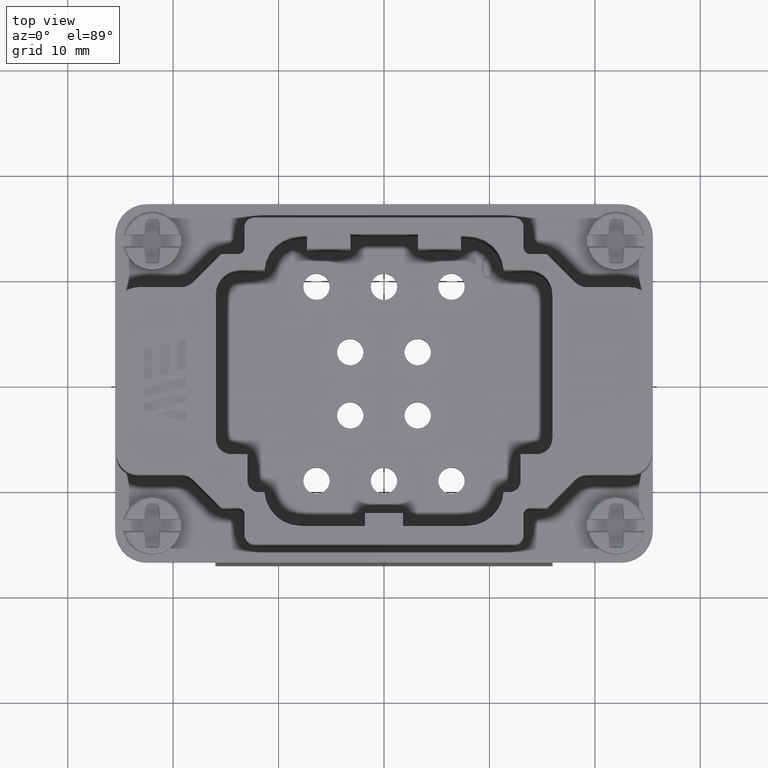
[diagram: clean part render]
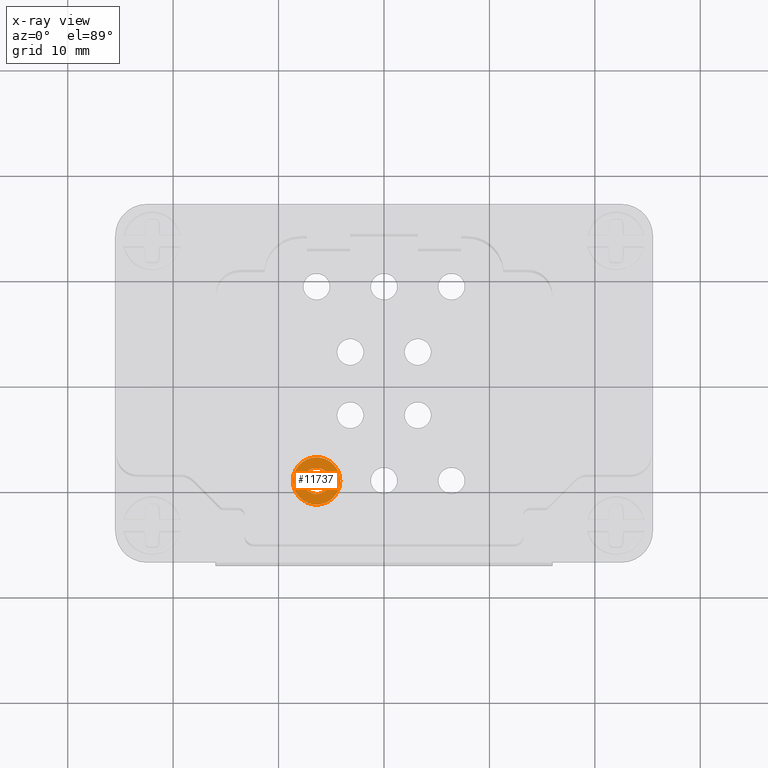
[diagram: x-ray — body ghosted, one internal face saturated and labeled with its STEP entity id]
A machine part, top view, then the same camera in x-ray: the body is ghosted and one INTERNAL B-rep face — a face not visible from any outside direction — is saturated and labeled: STEP entity #11737.
In plain terms, the highlighted planar face has unit normal (0, 0, 1).
Its self-contained STEP definition (entity closure, byte-faithful):
#1718 = CARTESIAN_POINT ( 'NONE',  ( -0.2519685326492323019, -0.3622047245847696550, -0.6496062992126024893 ) ) ;
#2510 = ORIENTED_EDGE ( 'NONE', *, *, #4853, .T. ) ;
#2713 = CARTESIAN_POINT ( 'NONE',  ( -0.1633858554838779620, -0.3622047245847696550, -0.6496062992126024893 ) ) ;
#2840 = AXIS2_PLACEMENT_3D ( 'NONE', #1718, #7911, #4754 ) ;
#3561 = DIRECTION ( 'NONE',  ( 0.000000000000000000, 0.000000000000000000, -1.000000000000000000 ) ) ;
#3744 = EDGE_CURVE ( 'NONE', #17193, #5193, #16396, .T. ) ;
#3760 = EDGE_LOOP ( 'NONE', ( #2510, #19165 ) ) ;
#3880 = CIRCLE ( 'NONE', #6245, 0.08858267716535433989 ) ;
#4560 = CARTESIAN_POINT ( 'NONE',  ( -0.2519685326492323019, -0.3622047245847696550, -0.6496062992126024893 ) ) ;
#4754 = DIRECTION ( 'NONE',  ( 1.000000000000000000, 0.000000000000000000, -0.000000000000000000 ) ) ;
#4853 = EDGE_CURVE ( 'NONE', #19788, #15242, #10750, .T. ) ;
#5193 = VERTEX_POINT ( 'NONE', #9506 ) ;
#5656 = DIRECTION ( 'NONE',  ( -1.000000000000000000, 0.000000000000000000, 0.000000000000000000 ) ) ;
#5684 = FACE_OUTER_BOUND ( 'NONE', #3760, .T. ) ;
#6245 = AXIS2_PLACEMENT_3D ( 'NONE', #13362, #19526, #11384 ) ;
#7195 = AXIS2_PLACEMENT_3D ( 'NONE', #16305, #3561, #8177 ) ;
#7439 = DIRECTION ( 'NONE',  ( 0.000000000000000000, 0.000000000000000000, -1.000000000000000000 ) ) ;
#7911 = DIRECTION ( 'NONE',  ( 0.000000000000000000, 0.000000000000000000, 1.000000000000000000 ) ) ;
#8177 = DIRECTION ( 'NONE',  ( -1.000000000000000000, 0.000000000000000000, 0.000000000000000000 ) ) ;
#9506 = CARTESIAN_POINT ( 'NONE',  ( -0.2027559342240354556, -0.3622047245847696550, -0.6496062992126024893 ) ) ;
#10750 = CIRCLE ( 'NONE', #18398, 0.08858267716535433989 ) ;
#11384 = DIRECTION ( 'NONE',  ( -1.000000000000000000, 0.000000000000000000, 0.000000000000000000 ) ) ;
#11737 = ADVANCED_FACE ( 'NONE', ( #5684, #12059 ), #12796, .F. ) ;
#12059 = FACE_BOUND ( 'NONE', #16974, .T. ) ;
#12796 = PLANE ( 'NONE',  #2840 ) ;
#13362 = CARTESIAN_POINT ( 'NONE',  ( -0.2519685326492323019, -0.3622047245847696550, -0.6496062992126024893 ) ) ;
#13957 = DIRECTION ( 'NONE',  ( -1.000000000000000000, 0.000000000000000000, 0.000000000000000000 ) ) ;
#15079 = EDGE_CURVE ( 'NONE', #5193, #17193, #16197, .T. ) ;
#15242 = VERTEX_POINT ( 'NONE', #2713 ) ;
#15401 = ORIENTED_EDGE ( 'NONE', *, *, #15079, .F. ) ;
#15663 = ORIENTED_EDGE ( 'NONE', *, *, #3744, .F. ) ;
#16197 = CIRCLE ( 'NONE', #7195, 0.04921259842519686012 ) ;
#16305 = CARTESIAN_POINT ( 'NONE',  ( -0.2519685326492323019, -0.3622047245847696550, -0.6496062992126024893 ) ) ;
#16396 = CIRCLE ( 'NONE', #18730, 0.04921259842519686012 ) ;
#16944 = CARTESIAN_POINT ( 'NONE',  ( -0.2519685326492323019, -0.3622047245847696550, -0.6496062992126024893 ) ) ;
#16974 = EDGE_LOOP ( 'NONE', ( #15663, #15401 ) ) ;
#17193 = VERTEX_POINT ( 'NONE', #18791 ) ;
#18398 = AXIS2_PLACEMENT_3D ( 'NONE', #4560, #18646, #13957 ) ;
#18646 = DIRECTION ( 'NONE',  ( 0.000000000000000000, 0.000000000000000000, -1.000000000000000000 ) ) ;
#18730 = AXIS2_PLACEMENT_3D ( 'NONE', #16944, #7439, #5656 ) ;
#18791 = CARTESIAN_POINT ( 'NONE',  ( -0.3011811310744291759, -0.3622047245847696550, -0.6496062992126024893 ) ) ;
#19165 = ORIENTED_EDGE ( 'NONE', *, *, #19906, .T. ) ;
#19526 = DIRECTION ( 'NONE',  ( 0.000000000000000000, 0.000000000000000000, -1.000000000000000000 ) ) ;
#19788 = VERTEX_POINT ( 'NONE', #20591 ) ;
#19906 = EDGE_CURVE ( 'NONE', #15242, #19788, #3880, .T. ) ;
#20591 = CARTESIAN_POINT ( 'NONE',  ( -0.3405512098145866418, -0.3622047245847696550, -0.6496062992126024893 ) ) ;